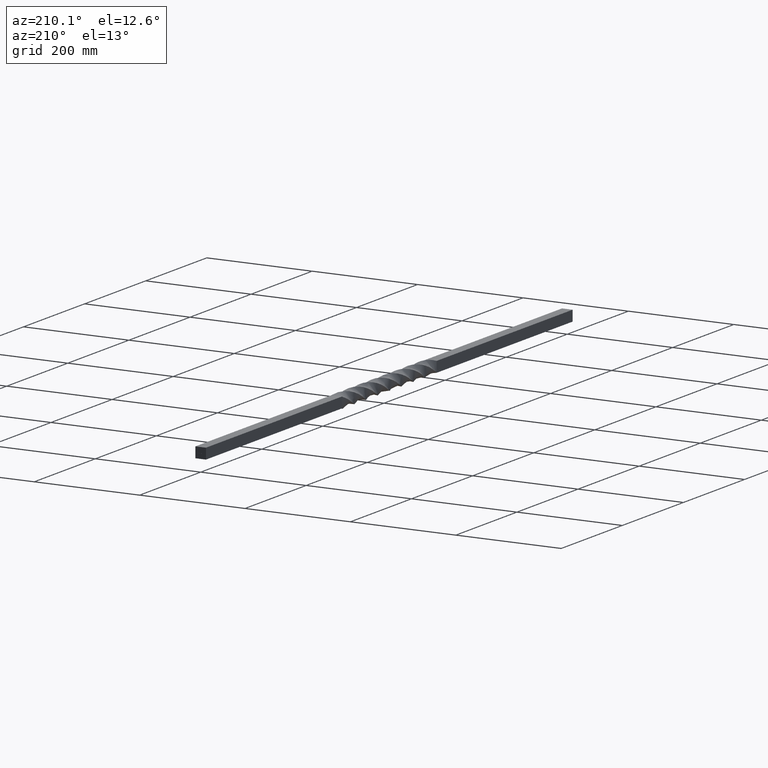
[diagram: clean part render]
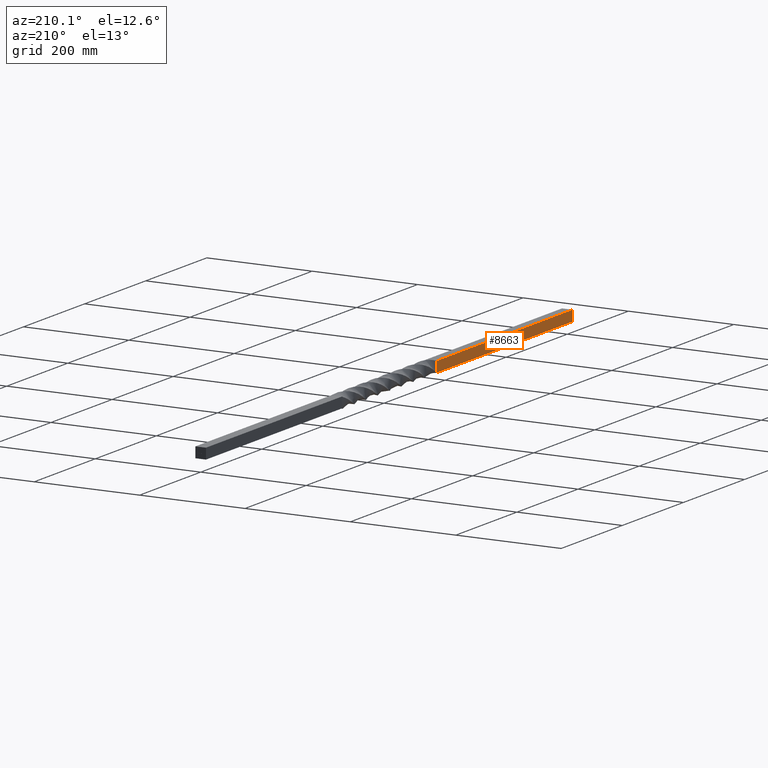
[diagram: same view with one face highlighted and labeled with its STEP entity id]
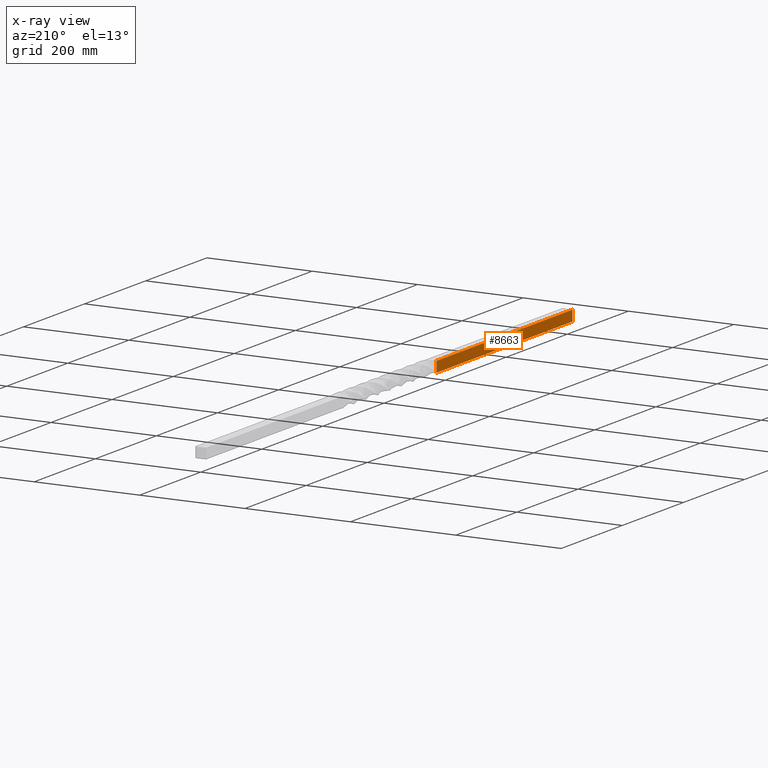
[diagram: x-ray of the same camera — body ghosted, the highlighted face saturated]
A machine part, auxiliary view. The second image highlights one B-rep face of the part: STEP entity #8663.
The next image is the same camera in x-ray: the body ghosted, the highlighted face saturated — about 0% of this face is hidden behind the body in this view.
In plain terms, the highlighted planar face has unit normal (1, 0, -0).
Its self-contained STEP definition (entity closure, byte-faithful):
#364 = CARTESIAN_POINT ( 'NONE',  ( -9.999999999999998224, 0.000000000000000000, 9.999999833333335530 ) ) ;
#388 = CARTESIAN_POINT ( 'NONE',  ( -10.00000000000000355, 1200.000000000000000, -10.00000000000000178 ) ) ;
#753 = ORIENTED_EDGE ( 'NONE', *, *, #3795, .T. ) ;
#839 = B_SPLINE_CURVE_WITH_KNOTS ( 'NONE', 3,
 ( #3032, #8062, #1090, #6553 ),
 .UNSPECIFIED., .F., .F.,
 ( 4, 4 ),
 ( 0.000000000000000000, 1.000000000000000000 ),
 .UNSPECIFIED. ) ;
#1090 = CARTESIAN_POINT ( 'NONE',  ( -10.00000000000000355, 148.3333333333333428, -10.00000000000000178 ) ) ;
#1289 = CARTESIAN_POINT ( 'NONE',  ( -10.00000000000000355, 445.0000000000000568, -10.00000000000000178 ) ) ;
#1503 = DIRECTION ( 'NONE',  ( 2.602085213965210149E-16, -0.000000000000000000, 1.000000000000000000 ) ) ;
#1636 = CARTESIAN_POINT ( 'NONE',  ( -9.999999970839343888, 445.0000000717486728, 10.00000002643431429 ) ) ;
#1760 = DIRECTION ( 'NONE',  ( -2.602085213965210149E-16, 0.000000000000000000, -1.000000000000000000 ) ) ;
#1981 = EDGE_CURVE ( 'NONE', #7836, #2210, #4628, .T. ) ;
#2075 = CARTESIAN_POINT ( 'NONE',  ( -10.00000000000000178, 0.000000000000000000, -3.333333333333333925 ) ) ;
#2144 = CARTESIAN_POINT ( 'NONE',  ( -10.00000000000000355, 445.0000000000000568, -10.00000000000000178 ) ) ;
#2210 = VERTEX_POINT ( 'NONE', #364 ) ;
#2569 = FACE_OUTER_BOUND ( 'NONE', #3176, .T. ) ;
#2725 = ORIENTED_EDGE ( 'NONE', *, *, #1981, .T. ) ;
#2964 = CARTESIAN_POINT ( 'NONE',  ( -9.999999999999998224, 296.6666666666666856, 10.00000000000000178 ) ) ;
#3032 = CARTESIAN_POINT ( 'NONE',  ( -10.00000000000000355, 445.0000000000000568, -10.00000000000000178 ) ) ;
#3176 = EDGE_LOOP ( 'NONE', ( #2725, #8734, #4220, #753 ) ) ;
#3181 = EDGE_CURVE ( 'NONE', #5188, #5718, #7394, .T. ) ;
#3795 = EDGE_CURVE ( 'NONE', #5188, #7836, #839, .T. ) ;
#4170 = EDGE_CURVE ( 'NONE', #5718, #2210, #4290, .T. ) ;
#4220 = ORIENTED_EDGE ( 'NONE', *, *, #3181, .F. ) ;
#4290 = B_SPLINE_CURVE_WITH_KNOTS ( 'NONE', 3,
 ( #1636, #2964, #7146, #8617 ),
 .UNSPECIFIED., .F., .F.,
 ( 4, 4 ),
 ( 0.000000000000000000, 1.000000000000000000 ),
 .UNSPECIFIED. ) ;
#4628 = B_SPLINE_CURVE_WITH_KNOTS ( 'NONE', 3,
 ( #4814, #2075, #5510, #7676 ),
 .UNSPECIFIED., .F., .F.,
 ( 4, 4 ),
 ( 0.000000000000000000, 0.9999999750000000409 ),
 .UNSPECIFIED. ) ;
#4814 = CARTESIAN_POINT ( 'NONE',  ( -9.999999833333335530, 0.000000000000000000, -10.00000000000000178 ) ) ;
#5188 = VERTEX_POINT ( 'NONE', #1289 ) ;
#5262 = DIRECTION ( 'NONE',  ( 1.000000000000000000, 0.000000000000000000, -2.602085213965210149E-16 ) ) ;
#5265 = CARTESIAN_POINT ( 'NONE',  ( -9.999999970839343888, 445.0000000717486728, 10.00000002643431429 ) ) ;
#5333 = VECTOR ( 'NONE', #1503, 1000.000000000000000 ) ;
#5510 = CARTESIAN_POINT ( 'NONE',  ( -10.00000000000000000, 0.000000000000000000, 3.333333333333333925 ) ) ;
#5718 = VERTEX_POINT ( 'NONE', #5265 ) ;
#6553 = CARTESIAN_POINT ( 'NONE',  ( -9.999999833333335530, 0.000000000000000000, -10.00000000000000178 ) ) ;
#6621 = AXIS2_PLACEMENT_3D ( 'NONE', #388, #5262, #1760 ) ;
#7146 = CARTESIAN_POINT ( 'NONE',  ( -9.999999999999998224, 148.3333333333333428, 10.00000000000000178 ) ) ;
#7394 = LINE ( 'NONE', #2144, #5333 ) ;
#7676 = CARTESIAN_POINT ( 'NONE',  ( -9.999999999999998224, 0.000000000000000000, 9.999999833333335530 ) ) ;
#7836 = VERTEX_POINT ( 'NONE', #8739 ) ;
#8030 = PLANE ( 'NONE',  #6621 ) ;
#8062 = CARTESIAN_POINT ( 'NONE',  ( -10.00000000000000355, 296.6666666666666856, -10.00000000000000178 ) ) ;
#8617 = CARTESIAN_POINT ( 'NONE',  ( -9.999999999999998224, 0.000000000000000000, 9.999999833333335530 ) ) ;
#8663 = ADVANCED_FACE ( 'NONE', ( #2569 ), #8030, .F. ) ;
#8734 = ORIENTED_EDGE ( 'NONE', *, *, #4170, .F. ) ;
#8739 = CARTESIAN_POINT ( 'NONE',  ( -9.999999833333335530, 0.000000000000000000, -10.00000000000000178 ) ) ;